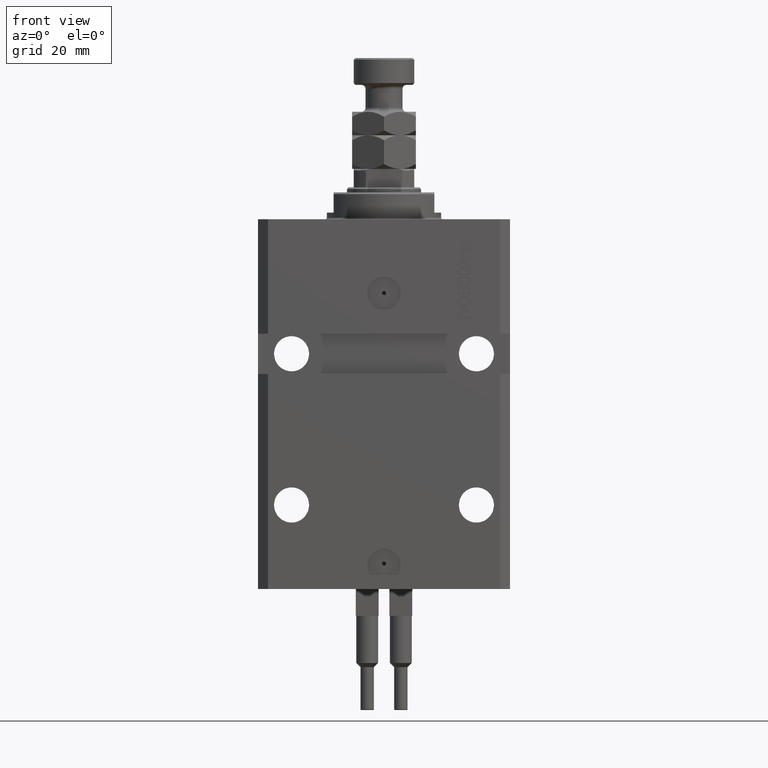
[diagram: clean part render]
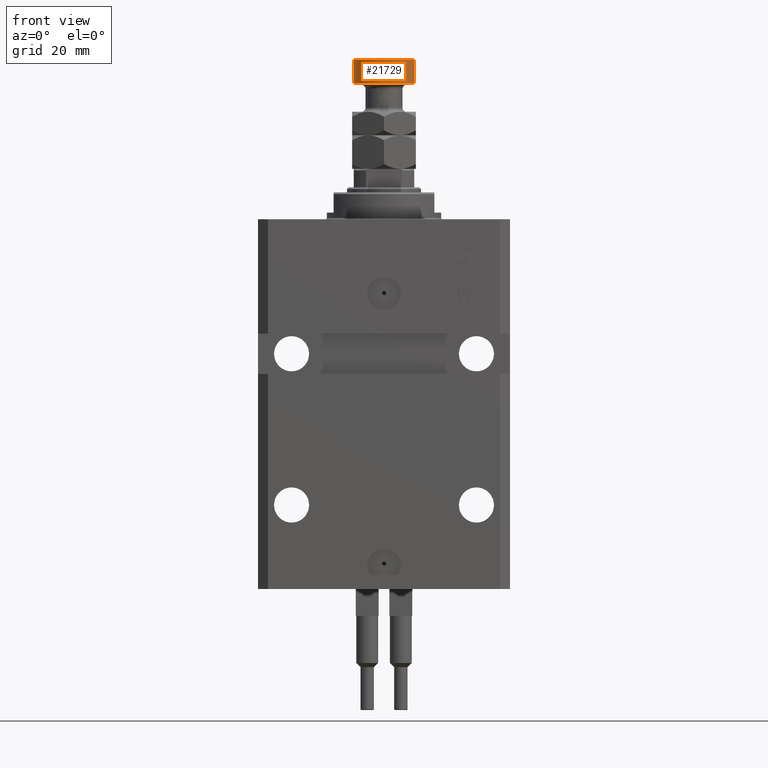
[diagram: same view with one face highlighted and labeled with its STEP entity id]
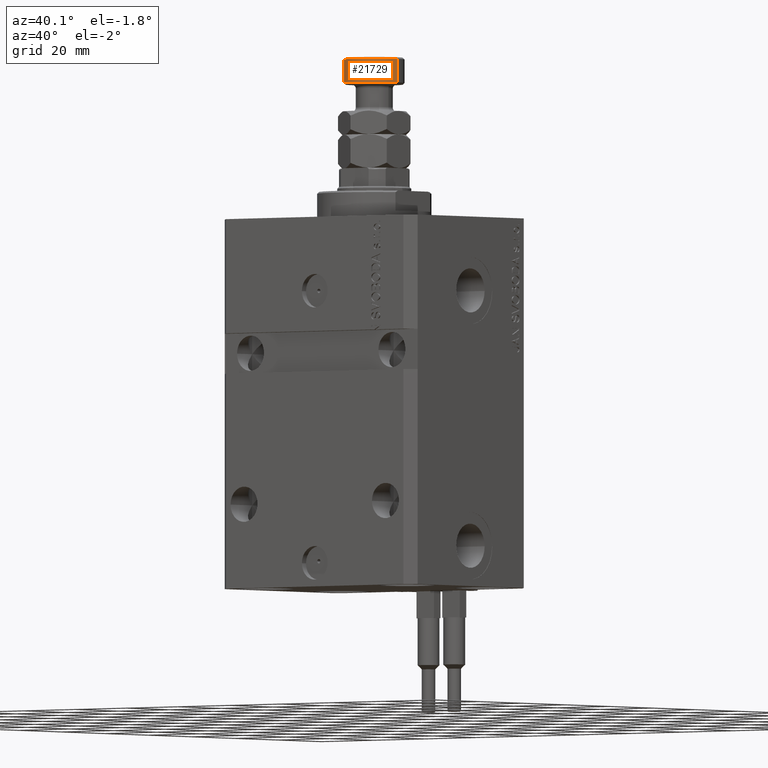
[diagram: same view with one face highlighted and labeled with its STEP entity id]
A machine part, front view. The second image highlights one B-rep face of the part: STEP entity #21729.
A second angle (auxiliary view) of the same face is appended — the face is thin or edge-on in the first view.
In plain terms, the highlighted cylindrical surface (edge-blend (fillet) strip) has radius 9 mm, axis along (-0, -0, -1).
Its self-contained STEP definition (entity closure, byte-faithful):
#934 = DIRECTION ( 'NONE',  ( -0.000000000000000000, -0.000000000000000000, -1.000000000000000000 ) ) ;
#3189 = CARTESIAN_POINT ( 'NONE',  ( -9.000000000000000000, 0.000000000000000000, 33.00000000000000000 ) ) ;
#5730 = ORIENTED_EDGE ( 'NONE', *, *, #29262, .T. ) ;
#7942 = CARTESIAN_POINT ( 'NONE',  ( -9.000000000000000000, 0.000000000000000000, 25.49999999999999289 ) ) ;
#11152 = EDGE_CURVE ( 'NONE', #45119, #38970, #19287, .T. ) ;
#12405 = LINE ( 'NONE', #35316, #42143 ) ;
#12585 = FACE_OUTER_BOUND ( 'NONE', #30221, .T. ) ;
#13355 = CIRCLE ( 'NONE', #49953, 9.000000000000000000 ) ;
#15268 = ORIENTED_EDGE ( 'NONE', *, *, #38392, .F. ) ;
#15664 = DIRECTION ( 'NONE',  ( -1.000000000000000000, 0.000000000000000000, 0.000000000000000000 ) ) ;
#18960 = DIRECTION ( 'NONE',  ( -0.000000000000000000, -0.000000000000000000, -1.000000000000000000 ) ) ;
#19287 = CIRCLE ( 'NONE', #50190, 9.000000000000000000 ) ;
#19704 = DIRECTION ( 'NONE',  ( 1.000000000000000000, 0.000000000000000000, 0.000000000000000000 ) ) ;
#20214 = CARTESIAN_POINT ( 'NONE',  ( 0.000000000000000000, 0.000000000000000000, 33.00000000000000000 ) ) ;
#21729 = ADVANCED_FACE ( 'NONE', ( #12585 ), #35495, .T. ) ;
#22279 = ORIENTED_EDGE ( 'NONE', *, *, #32096, .T. ) ;
#22583 = DIRECTION ( 'NONE',  ( -0.000000000000000000, -0.000000000000000000, 1.000000000000000000 ) ) ;
#22973 = DIRECTION ( 'NONE',  ( 0.000000000000000000, 0.000000000000000000, -1.000000000000000000 ) ) ;
#23238 = CARTESIAN_POINT ( 'NONE',  ( 9.000000000000000000, 1.102182119232617714E-15, 25.49999999999999289 ) ) ;
#26121 = AXIS2_PLACEMENT_3D ( 'NONE', #20214, #38831, #15664 ) ;
#27196 = CARTESIAN_POINT ( 'NONE',  ( 9.000000000000000000, 1.102182119232617714E-15, 32.49999999999999289 ) ) ;
#28545 = CARTESIAN_POINT ( 'NONE',  ( -9.000000000000000000, 0.000000000000000000, 32.49999999999999289 ) ) ;
#29262 = EDGE_CURVE ( 'NONE', #30818, #29331, #13355, .T. ) ;
#29331 = VERTEX_POINT ( 'NONE', #28545 ) ;
#30221 = EDGE_LOOP ( 'NONE', ( #15268, #5730, #22279, #40785 ) ) ;
#30479 = CARTESIAN_POINT ( 'NONE',  ( 0.000000000000000000, 0.000000000000000000, 25.49999999999999289 ) ) ;
#30818 = VERTEX_POINT ( 'NONE', #27196 ) ;
#32096 = EDGE_CURVE ( 'NONE', #29331, #45119, #38055, .T. ) ;
#35316 = CARTESIAN_POINT ( 'NONE',  ( 9.000000000000000000, 1.102182119232617714E-15, 33.00000000000000000 ) ) ;
#35495 = CYLINDRICAL_SURFACE ( 'NONE', #26121, 9.000000000000000000 ) ;
#37806 = VECTOR ( 'NONE', #18960, 1000.000000000000000 ) ;
#38055 = LINE ( 'NONE', #3189, #37806 ) ;
#38392 = EDGE_CURVE ( 'NONE', #30818, #38970, #12405, .T. ) ;
#38502 = DIRECTION ( 'NONE',  ( 1.000000000000000000, 0.000000000000000000, 0.000000000000000000 ) ) ;
#38831 = DIRECTION ( 'NONE',  ( -0.000000000000000000, -0.000000000000000000, -1.000000000000000000 ) ) ;
#38970 = VERTEX_POINT ( 'NONE', #23238 ) ;
#40785 = ORIENTED_EDGE ( 'NONE', *, *, #11152, .T. ) ;
#42143 = VECTOR ( 'NONE', #934, 1000.000000000000000 ) ;
#45119 = VERTEX_POINT ( 'NONE', #7942 ) ;
#49720 = CARTESIAN_POINT ( 'NONE',  ( 0.000000000000000000, 0.000000000000000000, 32.49999999999999289 ) ) ;
#49953 = AXIS2_PLACEMENT_3D ( 'NONE', #49720, #22973, #38502 ) ;
#50190 = AXIS2_PLACEMENT_3D ( 'NONE', #30479, #22583, #19704 ) ;